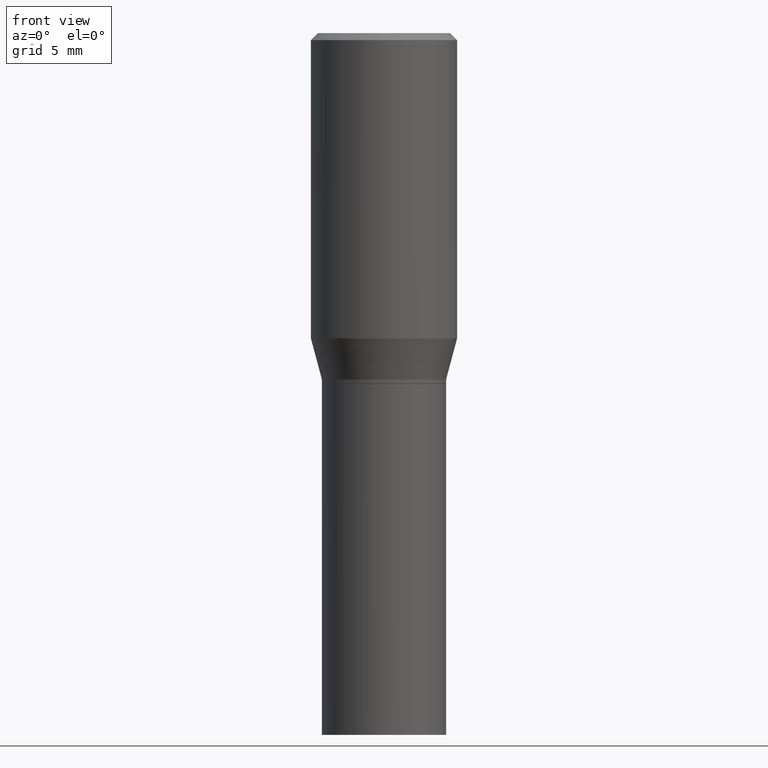
[diagram: clean part render]
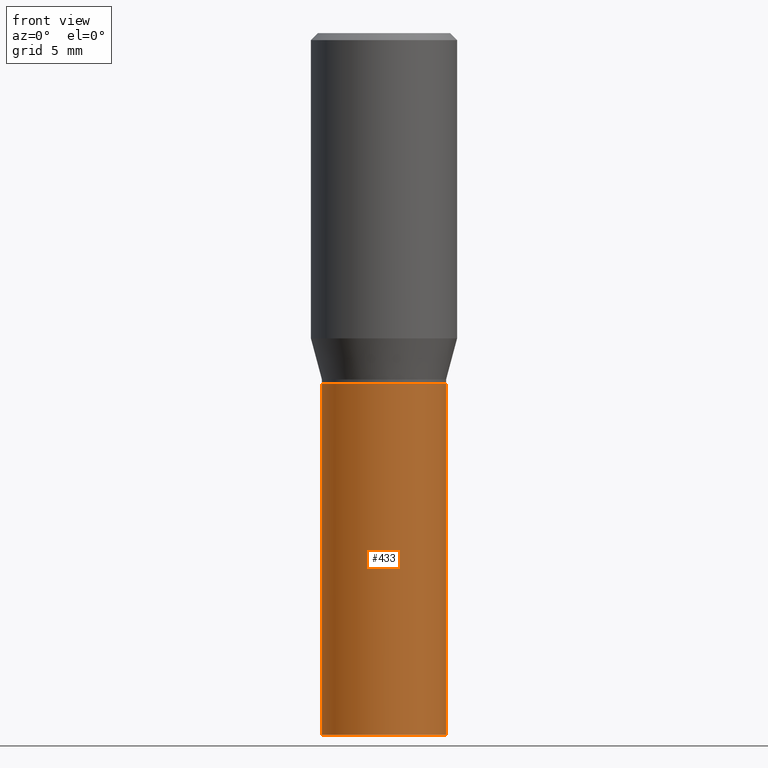
[diagram: same view with one face highlighted and labeled with its STEP entity id]
A machine part, front view. The second image highlights one B-rep face of the part: STEP entity #433.
In plain terms, the highlighted cylindrical surface (partial cylindrical patch) has radius 3.3731 mm, axis along (-0, 0, 1).
Its self-contained STEP definition (entity closure, byte-faithful):
#8 = LINE ( 'NONE', #279, #63 ) ;
#27 = DIRECTION ( 'NONE',  ( -2.445468806185136597E-29, 3.491481338843145583E-15, 1.000000000000000000 ) ) ;
#33 = VERTEX_POINT ( 'NONE', #246 ) ;
#53 = ORIENTED_EDGE ( 'NONE', *, *, #302, .F. ) ;
#60 = DIRECTION ( 'NONE',  ( -2.445468806185136877E-29, 3.491481338843145188E-15, 1.000000000000000000 ) ) ;
#63 = VECTOR ( 'NONE', #434, 39.37007874015748143 ) ;
#89 = VERTEX_POINT ( 'NONE', #423 ) ;
#104 = DIRECTION ( 'NONE',  ( 1.000000000000000000, -6.982962677686266711E-15, 4.876176775795935232E-29 ) ) ;
#130 = EDGE_CURVE ( 'NONE', #188, #333, #258, .T. ) ;
#139 = CARTESIAN_POINT ( 'NONE',  ( 0.1328000000000000014, -3.545948447729095705E-15, -0.7500000000000001110 ) ) ;
#140 = CYLINDRICAL_SURFACE ( 'NONE', #378, 0.1328000000000000014 ) ;
#150 = ORIENTED_EDGE ( 'NONE', *, *, #235, .F. ) ;
#155 = DIRECTION ( 'NONE',  ( -2.445468806185136597E-29, 3.491481338843145583E-15, 1.000000000000000000 ) ) ;
#167 = ORIENTED_EDGE ( 'NONE', *, *, #403, .T. ) ;
#173 = CARTESIAN_POINT ( 'NONE',  ( 1.834101604638852448E-29, -2.618611004132359088E-15, -0.7500000000000001110 ) ) ;
#175 = EDGE_LOOP ( 'NONE', ( #150, #167, #337, #53 ) ) ;
#186 = CARTESIAN_POINT ( 'NONE',  ( 0.000000000000000000, 0.000000000000000000, 0.000000000000000000 ) ) ;
#188 = VERTEX_POINT ( 'NONE', #293 ) ;
#190 = AXIS2_PLACEMENT_3D ( 'NONE', #380, #27, #463 ) ;
#228 = CIRCLE ( 'NONE', #237, 0.1328000000000000014 ) ;
#235 = EDGE_CURVE ( 'NONE', #89, #33, #8, .T. ) ;
#237 = AXIS2_PLACEMENT_3D ( 'NONE', #173, #425, #315 ) ;
#246 = CARTESIAN_POINT ( 'NONE',  ( -0.1328000000000000014, -2.984315753109125576E-15, -0.7500000000000001110 ) ) ;
#258 = LINE ( 'NONE', #372, #294 ) ;
#279 = CARTESIAN_POINT ( 'NONE',  ( -0.1328000000000000014, 9.436007530894130566E-16, -6.532345799858513932E-30 ) ) ;
#293 = CARTESIAN_POINT ( 'NONE',  ( 0.1328000000000000014, -6.164559451861454793E-15, -1.500000000000000222 ) ) ;
#294 = VECTOR ( 'NONE', #60, 39.37007874015748143 ) ;
#302 = EDGE_CURVE ( 'NONE', #33, #333, #228, .T. ) ;
#315 = DIRECTION ( 'NONE',  ( 1.000000000000000000, -6.982962677686268288E-15, 0.000000000000000000 ) ) ;
#333 = VERTEX_POINT ( 'NONE', #139 ) ;
#337 = ORIENTED_EDGE ( 'NONE', *, *, #130, .T. ) ;
#372 = CARTESIAN_POINT ( 'NONE',  ( 0.1328000000000000014, -9.273374435967362223E-16, 6.475562758257002307E-30 ) ) ;
#375 = FACE_OUTER_BOUND ( 'NONE', #175, .T. ) ;
#378 = AXIS2_PLACEMENT_3D ( 'NONE', #186, #155, #104 ) ;
#380 = CARTESIAN_POINT ( 'NONE',  ( 3.668203209277704895E-29, -5.237222008264718177E-15, -1.500000000000000222 ) ) ;
#400 = CIRCLE ( 'NONE', #190, 0.1328000000000000014 ) ;
#403 = EDGE_CURVE ( 'NONE', #89, #188, #400, .T. ) ;
#423 = CARTESIAN_POINT ( 'NONE',  ( -0.1328000000000000014, -2.984315753109125576E-15, -1.500000000000000222 ) ) ;
#425 = DIRECTION ( 'NONE',  ( -2.445468806185136597E-29, 3.491481338843145583E-15, 1.000000000000000000 ) ) ;
#433 = ADVANCED_FACE ( 'NONE', ( #375 ), #140, .T. ) ;
#434 = DIRECTION ( 'NONE',  ( -2.445468806185136877E-29, 3.491481338843145188E-15, 1.000000000000000000 ) ) ;
#463 = DIRECTION ( 'NONE',  ( 1.000000000000000000, -6.982962677686263555E-15, 0.000000000000000000 ) ) ;